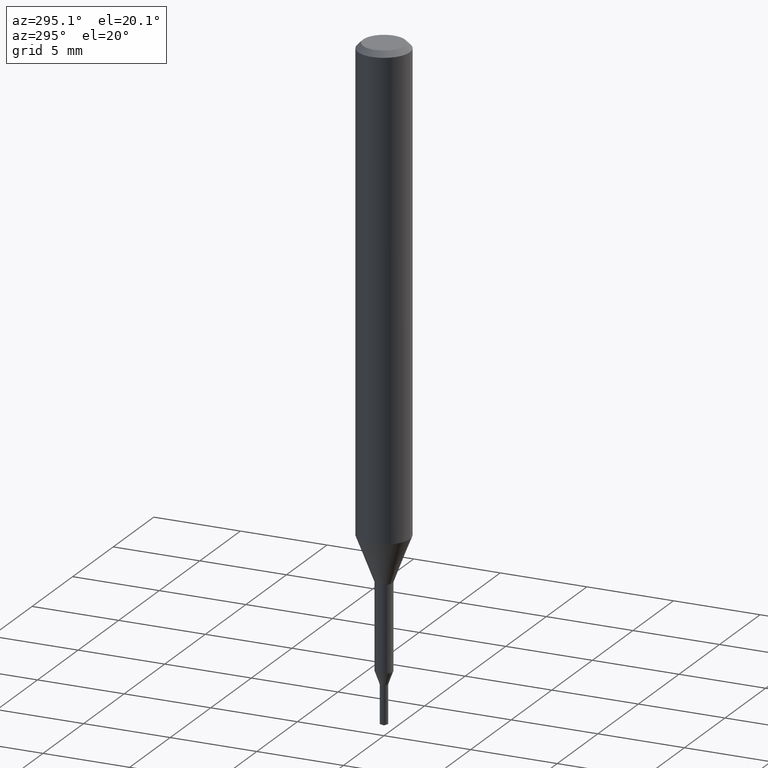
[diagram: clean part render]
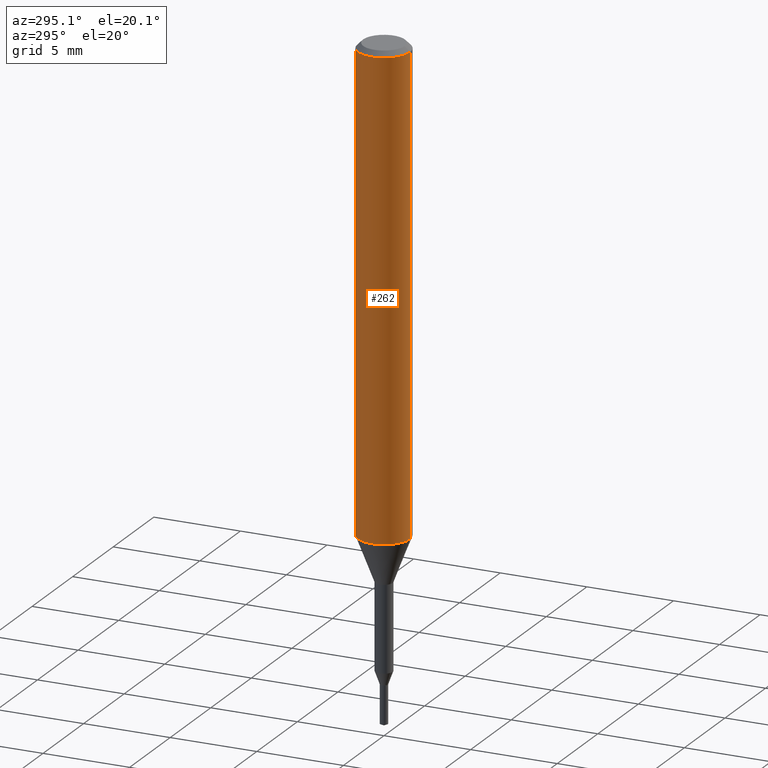
[diagram: same view with one face highlighted and labeled with its STEP entity id]
A machine part, auxiliary view. The second image highlights one B-rep face of the part: STEP entity #262.
In plain terms, the highlighted cylindrical surface (edge-blend (fillet) strip) has radius 1.5 mm, axis along (-0, -0, 1).
Its self-contained STEP definition (entity closure, byte-faithful):
#114=VERTEX_POINT('',#291);
#136=VERTEX_POINT('',#317);
#172=EDGE_CURVE('',#114,#184,#358,.T.);
#184=VERTEX_POINT('',#370);
#186=EDGE_CURVE('',#136,#212,#372,.T.);
#212=VERTEX_POINT('',#403);
#240=EDGE_CURVE('',#114,#136,#434,.T.);
#260=EDGE_CURVE('',#212,#184,#456,.T.);
#262=ADVANCED_FACE('',(#458),#459,.T.);
#291=CARTESIAN_POINT('',(1.83690953073357E-016,-1.5,-27.395));
#317=CARTESIAN_POINT('',(1.83690953073357E-016,-1.5,-0.300000000000001));
#358=CIRCLE('',#568,1.5);
#370=CARTESIAN_POINT('',(0.0,1.5,-27.395));
#372=CIRCLE('',#589,1.5);
#403=CARTESIAN_POINT('',(0.0,1.5,-0.300000000000001));
#434=LINE('',#662,#663);
#456=LINE('',#693,#694);
#458=FACE_OUTER_BOUND('',#696,.T.);
#459=CYLINDRICAL_SURFACE('',#697,1.5);
#568=AXIS2_PLACEMENT_3D('',#795,#796,#797);
#589=AXIS2_PLACEMENT_3D('',#806,#807,#808);
#662=CARTESIAN_POINT('',(1.83690953073357E-016,-1.5,-13.8475));
#663=VECTOR('',#893,1.0);
#693=CARTESIAN_POINT('',(-1.83690953073357E-016,1.5,-13.8475));
#694=VECTOR('',#915,1.0);
#696=EDGE_LOOP('',(#917,#918,#919,#920));
#697=AXIS2_PLACEMENT_3D('',#921,#922,#923);
#795=CARTESIAN_POINT('',(0.0,0.0,-27.395));
#796=DIRECTION('',(0.0,0.0,-1.0));
#797=DIRECTION('',(0.0,1.0,0.0));
#806=CARTESIAN_POINT('',(0.0,0.0,-0.300000000000001));
#807=DIRECTION('',(0.0,0.0,-1.0));
#808=DIRECTION('',(0.0,1.0,0.0));
#893=DIRECTION('',(-0.0,-0.0,1.0));
#915=DIRECTION('',(0.0,0.0,-1.0));
#917=ORIENTED_EDGE('',*,*,#260,.T.);
#918=ORIENTED_EDGE('',*,*,#172,.F.);
#919=ORIENTED_EDGE('',*,*,#240,.T.);
#920=ORIENTED_EDGE('',*,*,#186,.T.);
#921=CARTESIAN_POINT('',(0.0,0.0,-13.8475));
#922=DIRECTION('',(-0.0,-0.0,1.0));
#923=DIRECTION('',(0.0,1.0,0.0));